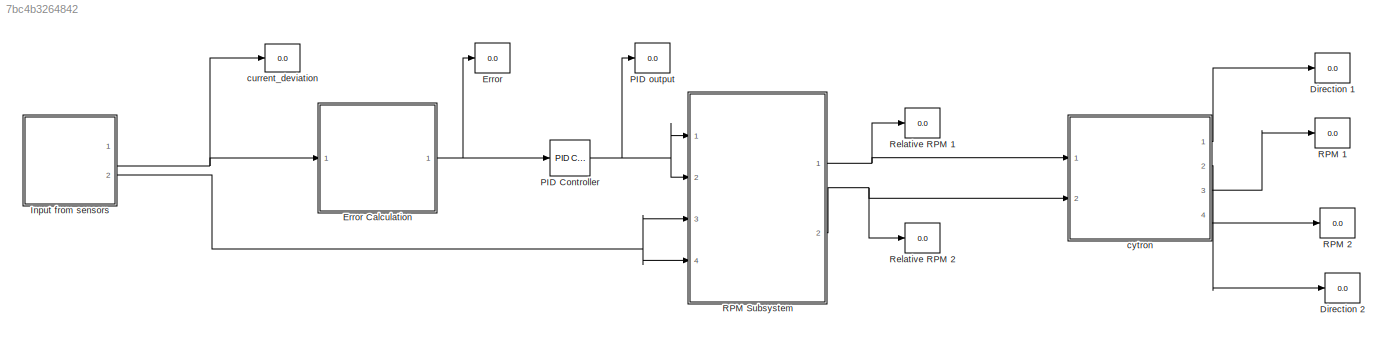
MODEL slx_7bc4b3264842
KIND model
CONFIG AbsTol = auto
CONFIG EnableMultiTasking = on
CONFIG FixedStep = auto
CONFIG MaxStep = auto
CONFIG MinStep = auto
CONFIG RelTol = 1e-3
CONFIG SampleTimeConstraint = Unconstrained
CONFIG Solver = FixedStepAuto
CONFIG SolverName = FixedStepAuto
CONFIG StartTime = 0.0
CONFIG StopTime = inf
BLOCK [Display] Direction 1
  Decimation = 1
  Ports = [1]
BLOCK [Display] Direction 2
  Decimation = 1
  Ports = [1]
BLOCK [Display] Error
  Decimation = 1
  Ports = [1]
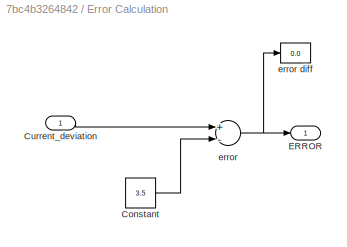
BLOCK [SubSystem] Error Calculation
  Ports = [1, 1]
  RequestExecContextInheritance = off
BLOCK [Constant] Error Calculation/Constant
  Value = 3.5
BLOCK [Inport] Error Calculation/Current_deviation
  IconDisplay = Port number
BLOCK [Outport] Error Calculation/ERROR
  IconDisplay = Port number
BLOCK [Sum] Error Calculation/error 
  InputSameDT = off
  Inputs = +-
  OutDataTypeStr = Inherit: Inherit via internal rule
  Ports = [2, 1]
  SaturateOnIntegerOverflow = off
BLOCK [Display] Error Calculation/error diff
  Decimation = 1
  Ports = [1]
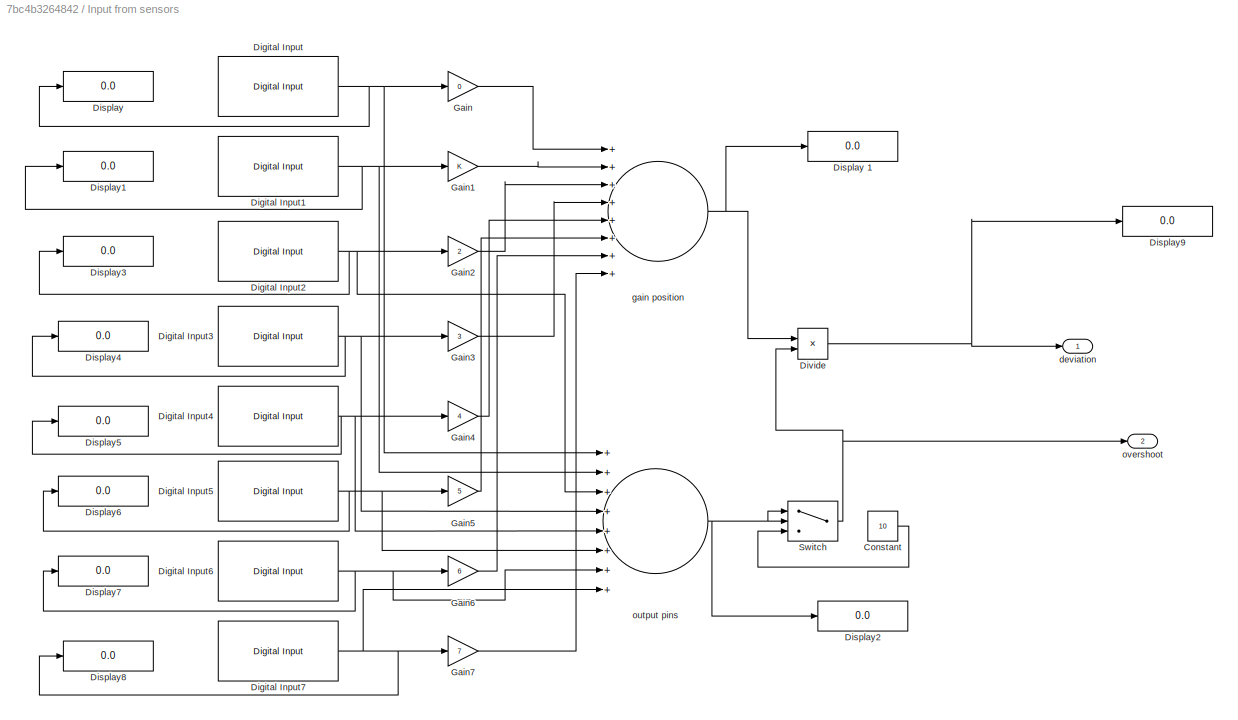
BLOCK [SubSystem] Input from sensors 
  Ports = [0, 2]
  RequestExecContextInheritance = off
BLOCK [Constant] Input from sensors /Constant
  Value = 10
BLOCK [Reference] Input from sensors /Digital Input  REF=arduinolib/Digital Input
  Ports = [0, 1]
  SourceBlock = arduinolib/Digital Input
  SourceProductBaseCode = ARDUINO
  SourceProductName = Simulink Support Package for Arduino Hardware
  SourceType = Arduino Digital Input
BLOCK [Reference] Input from sensors /Digital Input1  REF=arduinolib/Digital Input
  Ports = [0, 1]
  SourceBlock = arduinolib/Digital Input
  SourceProductBaseCode = ARDUINO
  SourceProductName = Simulink Support Package for Arduino Hardware
  SourceType = Arduino Digital Input
BLOCK [Reference] Input from sensors /Digital Input2  REF=arduinolib/Digital Input
  Ports = [0, 1]
  SourceBlock = arduinolib/Digital Input
  SourceProductBaseCode = ARDUINO
  SourceProductName = Simulink Support Package for Arduino Hardware
  SourceType = Arduino Digital Input
BLOCK [Reference] Input from sensors /Digital Input3  REF=arduinolib/Digital Input
  Ports = [0, 1]
  SourceBlock = arduinolib/Digital Input
  SourceProductBaseCode = ARDUINO
  SourceProductName = Simulink Support Package for Arduino Hardware
  SourceType = Arduino Digital Input
BLOCK [Reference] Input from sensors /Digital Input4  REF=arduinolib/Digital Input
  Ports = [0, 1]
  SourceBlock = arduinolib/Digital Input
  SourceProductBaseCode = ARDUINO
  SourceProductName = Simulink Support Package for Arduino Hardware
  SourceType = Arduino Digital Input
BLOCK [Reference] Input from sensors /Digital Input5  REF=arduinolib/Digital Input
  Ports = [0, 1]
  SourceBlock = arduinolib/Digital Input
  SourceProductBaseCode = ARDUINO
  SourceProductName = Simulink Support Package for Arduino Hardware
  SourceType = Arduino Digital Input
BLOCK [Reference] Input from sensors /Digital Input6  REF=arduinolib/Digital Input
  Ports = [0, 1]
  SourceBlock = arduinolib/Digital Input
  SourceProductBaseCode = ARDUINO
  SourceProductName = Simulink Support Package for Arduino Hardware
  SourceType = Arduino Digital Input
BLOCK [Reference] Input from sensors /Digital Input7  REF=arduinolib/Digital Input
  Ports = [0, 1]
  SourceBlock = arduinolib/Digital Input
  SourceProductBaseCode = ARDUINO
  SourceProductName = Simulink Support Package for Arduino Hardware
  SourceType = Arduino Digital Input
BLOCK [Display] Input from sensors /Display
  Decimation = 1
  Ports = [1]
BLOCK [Display] Input from sensors /Display 1
  Decimation = 1
  Ports = [1]
BLOCK [Display] Input from sensors /Display1
  Decimation = 1
  Ports = [1]
BLOCK [Display] Input from sensors /Display2
  Decimation = 1
  Ports = [1]
BLOCK [Display] Input from sensors /Display3
  Decimation = 1
  Ports = [1]
BLOCK [Display] Input from sensors /Display4
  Decimation = 1
  Ports = [1]
BLOCK [Display] Input from sensors /Display5
  Decimation = 1
  Ports = [1]
BLOCK [Display] Input from sensors /Display6
  Decimation = 1
  Ports = [1]
BLOCK [Display] Input from sensors /Display7
  Decimation = 1
  Ports = [1]
BLOCK [Display] Input from sensors /Display8
  Decimation = 1
  Ports = [1]
BLOCK [Display] Input from sensors /Display9
  Decimation = 1
  Ports = [1]
BLOCK [Product] Input from sensors /Divide
  InputSameDT = off
  Inputs = */
  OutDataTypeStr = Inherit: Inherit via internal rule
  Ports = [2, 1]
  RndMeth = Floor
  SaturateOnIntegerOverflow = off
BLOCK [Gain] Input from sensors /Gain
  Gain = 0
  OutDataTypeStr = Inherit: Inherit via internal rule
  ParamDataTypeStr = Inherit: Inherit via internal rule
  SaturateOnIntegerOverflow = off
BLOCK [Gain] Input from sensors /Gain1
  OutDataTypeStr = Inherit: Inherit via internal rule
  ParamDataTypeStr = Inherit: Inherit via internal rule
  SaturateOnIntegerOverflow = off
BLOCK [Gain] Input from sensors /Gain2
  Gain = 2
  OutDataTypeStr = Inherit: Inherit via internal rule
  ParamDataTypeStr = Inherit: Inherit via internal rule
  SaturateOnIntegerOverflow = off
BLOCK [Gain] Input from sensors /Gain3
  Gain = 3
  OutDataTypeStr = Inherit: Inherit via internal rule
  ParamDataTypeStr = Inherit: Inherit via internal rule
  SaturateOnIntegerOverflow = off
BLOCK [Gain] Input from sensors /Gain4
  Gain = 4
  OutDataTypeStr = Inherit: Inherit via internal rule
  ParamDataTypeStr = Inherit: Inherit via internal rule
  SaturateOnIntegerOverflow = off
BLOCK [Gain] Input from sensors /Gain5
  Gain = 5
  OutDataTypeStr = Inherit: Inherit via internal rule
  ParamDataTypeStr = Inherit: Inherit via internal rule
  SaturateOnIntegerOverflow = off
BLOCK [Gain] Input from sensors /Gain6
  Gain = 6
  OutDataTypeStr = Inherit: Inherit via internal rule
  ParamDataTypeStr = Inherit: Inherit via internal rule
  SaturateOnIntegerOverflow = off
BLOCK [Gain] Input from sensors /Gain7
  Gain = 7
  OutDataTypeStr = Inherit: Inherit via internal rule
  ParamDataTypeStr = Inherit: Inherit via internal rule
  SaturateOnIntegerOverflow = off
BLOCK [Switch] Input from sensors /Switch
  Criteria = u2 > Threshold
  InputSameDT = off
  SaturateOnIntegerOverflow = off
BLOCK [Outport] Input from sensors /deviation
  IconDisplay = Port number
BLOCK [Sum] Input from sensors /gain position
  InputSameDT = off
  Inputs = ++++++++
  OutDataTypeStr = Inherit: Inherit via internal rule
  OutMax = [30]
  Ports = [8, 1]
  SaturateOnIntegerOverflow = off
BLOCK [Sum] Input from sensors /output pins
  InputSameDT = off
  Inputs = ++++++++
  OutDataTypeStr = Inherit: Inherit via internal rule
  OutMax = [9]
  Ports = [8, 1]
  SaturateOnIntegerOverflow = off
BLOCK [Outport] Input from sensors /overshoot 
  IconDisplay = Port number
  Port = 2
BLOCK [Reference] PID Controller  REF=simulink/Continuous/PID Controller
  Ports = [1, 1]
  SourceBlock = simulink/Continuous/PID Controller
  SourceProductBaseCode = SL
  SourceProductName = Simulink
  SourceType = PID 1dof
BLOCK [Display] PID output
  Decimation = 1
  Ports = [1]
BLOCK [Display] RPM 1
  Decimation = 1
  Ports = [1]
BLOCK [Display] RPM 2
  Decimation = 1
  Ports = [1]
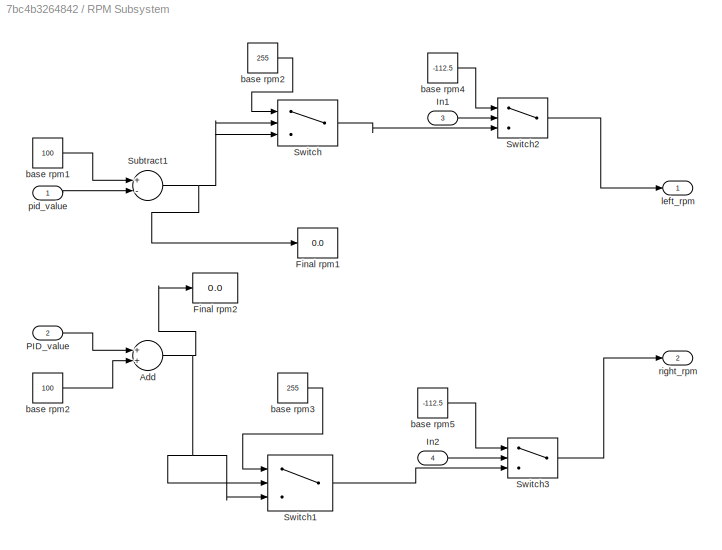
BLOCK [SubSystem] RPM Subsystem
  Ports = [4, 2]
  RequestExecContextInheritance = off
BLOCK [Sum] RPM Subsystem/Add
  InputSameDT = off
  OutDataTypeStr = Inherit: Inherit via internal rule
  Ports = [2, 1]
  SaturateOnIntegerOverflow = off
BLOCK [Display] RPM Subsystem/Final rpm1
  Decimation = 1
  Ports = [1]
BLOCK [Display] RPM Subsystem/Final rpm2 
  Decimation = 1
  Ports = [1]
BLOCK [Inport] RPM Subsystem/In1
  IconDisplay = Port number
  Port = 3
BLOCK [Inport] RPM Subsystem/In2
  IconDisplay = Port number
  Port = 4
BLOCK [Inport] RPM Subsystem/PID_value
  IconDisplay = Port number
  Port = 2
BLOCK [Sum] RPM Subsystem/Subtract1
  InputSameDT = off
  Inputs = +-
  OutDataTypeStr = Inherit: Inherit via internal rule
  Ports = [2, 1]
  SaturateOnIntegerOverflow = off
BLOCK [Switch] RPM Subsystem/Switch
  Criteria = u2 > Threshold
  InputSameDT = off
  SaturateOnIntegerOverflow = off
  Threshold = 255
BLOCK [Switch] RPM Subsystem/Switch1
  Criteria = u2 > Threshold
  InputSameDT = off
  SaturateOnIntegerOverflow = off
  Threshold = 255
BLOCK [Switch] RPM Subsystem/Switch2
  InputSameDT = off
  SaturateOnIntegerOverflow = off
  Threshold = 9
BLOCK [Switch] RPM Subsystem/Switch3
  InputSameDT = off
  SaturateOnIntegerOverflow = off
  Threshold = 9
BLOCK [Constant] RPM Subsystem/base rpm1
  Value = 100
BLOCK [Constant] RPM Subsystem/base rpm2
  Value = 255
BLOCK [Constant] RPM Subsystem/base rpm2 
  Value = 100
BLOCK [Constant] RPM Subsystem/base rpm3
  Value = 255
BLOCK [Constant] RPM Subsystem/base rpm4
  Value = -112.5
BLOCK [Constant] RPM Subsystem/base rpm5
  Value = -112.5
BLOCK [Outport] RPM Subsystem/left_rpm
  IconDisplay = Port number
BLOCK [Inport] RPM Subsystem/pid_value
  IconDisplay = Port number
BLOCK [Outport] RPM Subsystem/right_rpm
  IconDisplay = Port number
  Port = 2
BLOCK [Display] Relative RPM 1
  Decimation = 1
  Ports = [1]
BLOCK [Display] Relative RPM 2
  Decimation = 1
  Ports = [1]
BLOCK [Display] current_deviation
  Decimation = 1
  Ports = [1]
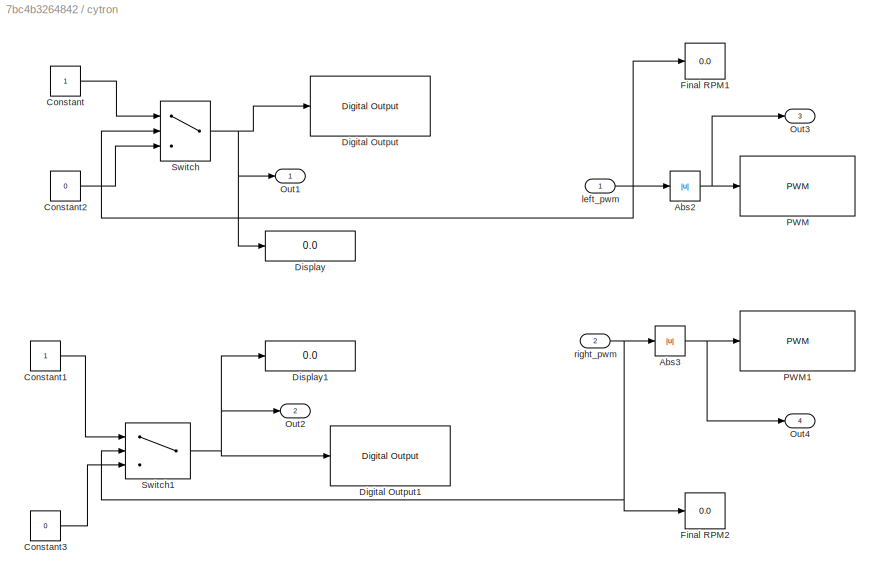
BLOCK [SubSystem] cytron
  Ports = [2, 4]
  RequestExecContextInheritance = off
BLOCK [Abs] cytron/Abs2
  SaturateOnIntegerOverflow = off
BLOCK [Abs] cytron/Abs3
  SaturateOnIntegerOverflow = off
BLOCK [Constant] cytron/Constant
BLOCK [Constant] cytron/Constant1
BLOCK [Constant] cytron/Constant2
  Value = 0
BLOCK [Constant] cytron/Constant3
  Value = 0
BLOCK [Reference] cytron/Digital Output  REF=arduinolib/Digital Output
  Ports = [1]
  SourceBlock = arduinolib/Digital Output
  SourceProductBaseCode = ARDUINO
  SourceProductName = Simulink Support Package for Arduino Hardware
  SourceType = Arduino Digital Output
BLOCK [Reference] cytron/Digital Output1  REF=arduinolib/Digital Output
  Ports = [1]
  SourceBlock = arduinolib/Digital Output
  SourceProductBaseCode = ARDUINO
  SourceProductName = Simulink Support Package for Arduino Hardware
  SourceType = Arduino Digital Output
BLOCK [Display] cytron/Display
  Decimation = 1
  Ports = [1]
BLOCK [Display] cytron/Display1
  Decimation = 1
  Ports = [1]
BLOCK [Display] cytron/Final RPM1 
  Decimation = 1
  Ports = [1]
BLOCK [Display] cytron/Final RPM2 
  Decimation = 1
  Ports = [1]
BLOCK [Outport] cytron/Out1
  IconDisplay = Port number
BLOCK [Outport] cytron/Out2
  IconDisplay = Port number
  Port = 2
BLOCK [Outport] cytron/Out3
  IconDisplay = Port number
  Port = 3
BLOCK [Outport] cytron/Out4
  IconDisplay = Port number
  Port = 4
BLOCK [Reference] cytron/PWM  REF=arduinolib/PWM
  Ports = [1]
  SourceBlock = arduinolib/PWM
  SourceProductBaseCode = ARDUINO
  SourceProductName = Simulink Support Package for Arduino Hardware
  SourceType = Arduino PWM
BLOCK [Reference] cytron/PWM1  REF=arduinolib/PWM
  Ports = [1]
  SourceBlock = arduinolib/PWM
  SourceProductBaseCode = ARDUINO
  SourceProductName = Simulink Support Package for Arduino Hardware
  SourceType = Arduino PWM
BLOCK [Switch] cytron/Switch
  Criteria = u2 > Threshold
  InputSameDT = off
  SaturateOnIntegerOverflow = off
BLOCK [Switch] cytron/Switch1
  Criteria = u2 > Threshold
  InputSameDT = off
  SaturateOnIntegerOverflow = off
BLOCK [Inport] cytron/left_pwm
  IconDisplay = Port number
BLOCK [Inport] cytron/right_pwm
  IconDisplay = Port number
  Port = 2
LINE Error Calculation/Constant:1 -> Error Calculation/error :2
LINE Error Calculation/Current_deviation:1 -> Error Calculation/error :1
NET Error Calculation/error :1 -> Error Calculation/ERROR:1, Error Calculation/error diff:1
NET Error Calculation:1 -> Error:1, PID Controller:1
LINE Input from sensors /Constant:1 -> Input from sensors /Switch:3
NET Input from sensors /Digital Input1:1 -> Input from sensors /Display1:1, Input from sensors /Gain1:1, Input from sensors /output pins:2
NET Input from sensors /Digital Input2:1 -> Input from sensors /Display3:1, Input from sensors /Gain2:1, Input from sensors /output pins:3
NET Input from sensors /Digital Input3:1 -> Input from sensors /Display4:1, Input from sensors /Gain3:1, Input from sensors /output pins:4
NET Input from sensors /Digital Input4:1 -> Input from sensors /Display5:1, Input from sensors /Gain4:1, Input from sensors /output pins:5
NET Input from sensors /Digital Input5:1 -> Input from sensors /Display6:1, Input from sensors /Gain5:1, Input from sensors /output pins:6
NET Input from sensors /Digital Input6:1 -> Input from sensors /Display7:1, Input from sensors /Gain6:1, Input from sensors /output pins:7
NET Input from sensors /Digital Input7:1 -> Input from sensors /Display8:1, Input from sensors /Gain7:1, Input from sensors /output pins:8
NET Input from sensors /Digital Input:1 -> Input from sensors /Display:1, Input from sensors /Gain:1, Input from sensors /output pins:1
NET Input from sensors /Divide:1 -> Input from sensors /Display9:1, Input from sensors /deviation:1
LINE Input from sensors /Gain1:1 -> Input from sensors /gain position:2
LINE Input from sensors /Gain2:1 -> Input from sensors /gain position:3
LINE Input from sensors /Gain3:1 -> Input from sensors /gain position:4
LINE Input from sensors /Gain4:1 -> Input from sensors /gain position:5
LINE Input from sensors /Gain5:1 -> Input from sensors /gain position:6
LINE Input from sensors /Gain6:1 -> Input from sensors /gain position:7
LINE Input from sensors /Gain7:1 -> Input from sensors /gain position:8
LINE Input from sensors /Gain:1 -> Input from sensors /gain position:1
NET Input from sensors /Switch:1 -> Input from sensors /Divide:2, Input from sensors /overshoot :1
NET Input from sensors /gain position:1 -> Input from sensors /Display 1:1, Input from sensors /Divide:1
NET Input from sensors /output pins:1 -> Input from sensors /Display2:1, Input from sensors /Switch:1, Input from sensors /Switch:2
NET Input from sensors :1 -> Error Calculation:1, current_deviation:1
NET Input from sensors :2 -> RPM Subsystem:3, RPM Subsystem:4
NET PID Controller:1 -> PID output:1, RPM Subsystem:1, RPM Subsystem:2
NET RPM Subsystem/Add:1 -> RPM Subsystem/Final rpm2 :1, RPM Subsystem/Switch1:2, RPM Subsystem/Switch1:3
LINE RPM Subsystem/In1:1 -> RPM Subsystem/Switch2:2
LINE RPM Subsystem/In2:1 -> RPM Subsystem/Switch3:2
LINE RPM Subsystem/PID_value:1 -> RPM Subsystem/Add:1
NET RPM Subsystem/Subtract1:1 -> RPM Subsystem/Final rpm1:1, RPM Subsystem/Switch:2, RPM Subsystem/Switch:3
LINE RPM Subsystem/Switch1:1 -> RPM Subsystem/Switch3:3
LINE RPM Subsystem/Switch2:1 -> RPM Subsystem/left_rpm:1
LINE RPM Subsystem/Switch3:1 -> RPM Subsystem/right_rpm:1
LINE RPM Subsystem/Switch:1 -> RPM Subsystem/Switch2:3
LINE RPM Subsystem/base rpm1:1 -> RPM Subsystem/Subtract1:1
LINE RPM Subsystem/base rpm2 :1 -> RPM Subsystem/Add:2
LINE RPM Subsystem/base rpm2:1 -> RPM Subsystem/Switch:1
LINE RPM Subsystem/base rpm3:1 -> RPM Subsystem/Switch1:1
LINE RPM Subsystem/base rpm4:1 -> RPM Subsystem/Switch2:1
LINE RPM Subsystem/base rpm5:1 -> RPM Subsystem/Switch3:1
LINE RPM Subsystem/pid_value:1 -> RPM Subsystem/Subtract1:2
NET RPM Subsystem:1 -> Relative RPM 1:1, cytron:1
NET RPM Subsystem:2 -> Relative RPM 2:1, cytron:2
NET cytron/Abs2:1 -> cytron/Out3:1, cytron/PWM:1
NET cytron/Abs3:1 -> cytron/Out4:1, cytron/PWM1:1
LINE cytron/Constant1:1 -> cytron/Switch1:1
LINE cytron/Constant2:1 -> cytron/Switch:3
LINE cytron/Constant3:1 -> cytron/Switch1:3
LINE cytron/Constant:1 -> cytron/Switch:1
NET cytron/Switch1:1 -> cytron/Digital Output1:1, cytron/Display1:1, cytron/Out2:1
NET cytron/Switch:1 -> cytron/Digital Output:1, cytron/Display:1, cytron/Out1:1
NET cytron/left_pwm:1 -> cytron/Abs2:1, cytron/Final RPM1 :1, cytron/Switch:2
NET cytron/right_pwm:1 -> cytron/Abs3:1, cytron/Final RPM2 :1, cytron/Switch1:2
LINE cytron:1 -> Direction 1:1
LINE cytron:2 -> Direction 2:1
LINE cytron:3 -> RPM 1:1
LINE cytron:4 -> RPM 2:1
note: NET lines group one-source signal fan-out (src -> all destinations, sorted); 1:1 wires keep LINE
